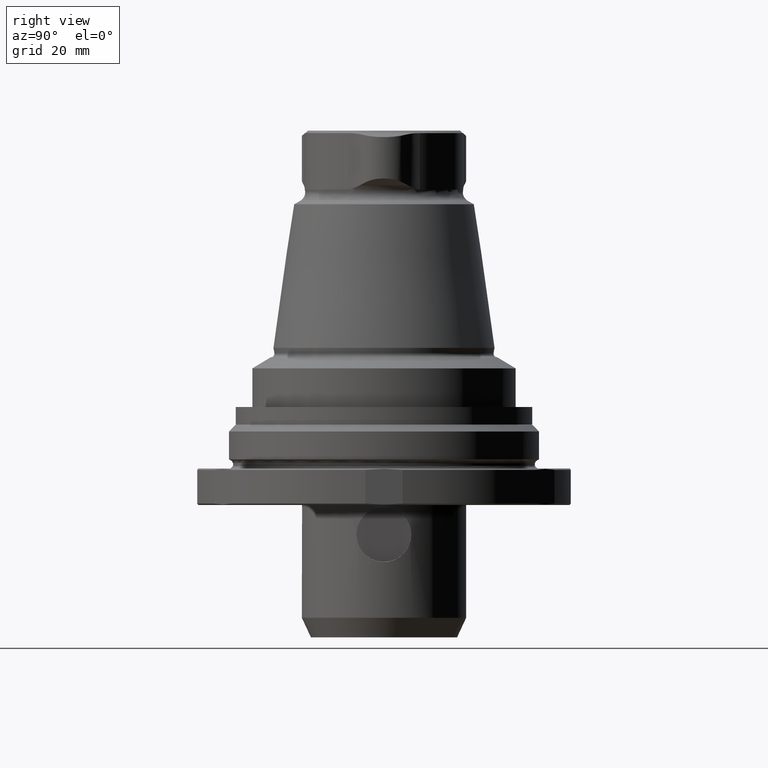
[diagram: clean part render]
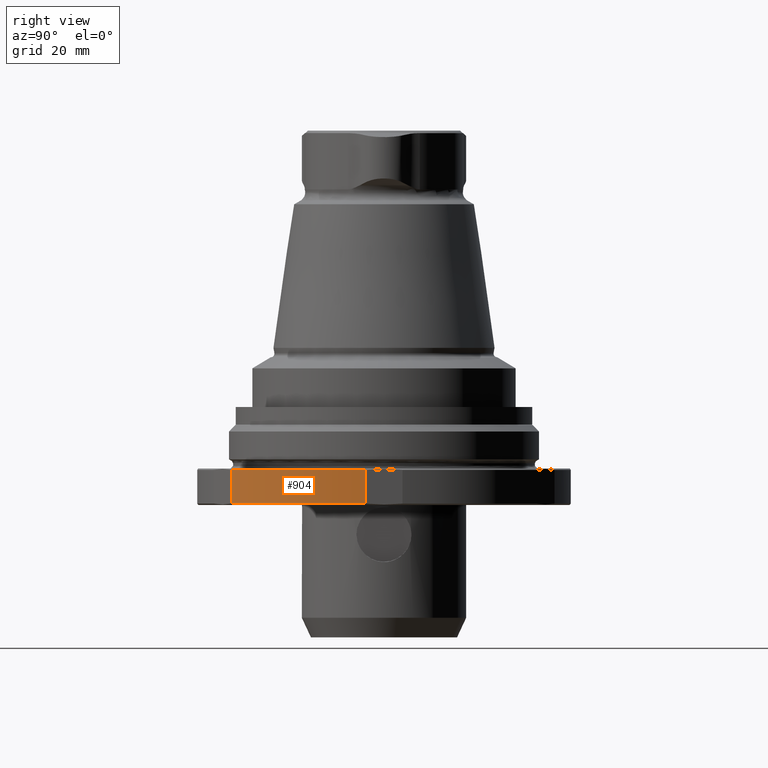
[diagram: same view with one face highlighted and labeled with its STEP entity id]
A machine part, right view. The second image highlights one B-rep face of the part: STEP entity #904.
In plain terms, the highlighted cylindrical surface (partial cylindrical patch) has radius 41 mm, axis along (-0, -0, -1).
Its self-contained STEP definition (entity closure, byte-faithful):
#22=LINE('',#1503,#50);
#23=LINE('',#1507,#51);
#50=VECTOR('',#1172,1000.);
#51=VECTOR('',#1177,1000.);
#130=CIRCLE('',#997,41.);
#138=CIRCLE('',#1008,41.);
#222=ORIENTED_EDGE('',*,*,#451,.F.);
#223=ORIENTED_EDGE('',*,*,#452,.T.);
#224=ORIENTED_EDGE('',*,*,#433,.T.);
#225=ORIENTED_EDGE('',*,*,#450,.T.);
#433=EDGE_CURVE('',#557,#556,#130,.T.);
#450=EDGE_CURVE('',#556,#571,#22,.T.);
#451=EDGE_CURVE('',#572,#571,#138,.T.);
#452=EDGE_CURVE('',#572,#557,#23,.F.);
#556=VERTEX_POINT('',#1447);
#557=VERTEX_POINT('',#1449);
#571=VERTEX_POINT('',#1502);
#572=VERTEX_POINT('',#1506);
#704=EDGE_LOOP('',(#222,#223,#224,#225));
#799=FACE_BOUND('',#704,.T.);
#863=CYLINDRICAL_SURFACE('',#1007,41.);
#904=ADVANCED_FACE('',(#799),#863,.T.);
#997=AXIS2_PLACEMENT_3D('',#1448,#1150,#1151);
#1007=AXIS2_PLACEMENT_3D('',#1504,#1173,#1174);
#1008=AXIS2_PLACEMENT_3D('',#1505,#1175,#1176);
#1150=DIRECTION('',(-5.20001084984554E-33,-4.76419527885826E-18,-1.));
#1151=DIRECTION('',(-1.,0.,0.));
#1172=DIRECTION('',(-5.20001084984554E-33,-4.76419527885825E-18,-1.));
#1173=DIRECTION('',(-5.20001084984554E-33,-4.76419527885826E-18,-1.));
#1174=DIRECTION('',(-1.,0.,0.));
#1175=DIRECTION('',(-5.20001084984554E-33,-4.76419527885826E-18,-1.));
#1176=DIRECTION('',(-1.,0.,0.));
#1177=DIRECTION('',(-5.20001084984554E-33,-4.76419527885826E-18,-1.));
#1447=CARTESIAN_POINT('',(23.9028559776274,-33.3114616327894,-1.3));
#1448=CARTESIAN_POINT('',(7.88665112559661E-15,-4.71655332606972E-17,-1.3));
#1449=CARTESIAN_POINT('',(40.8,-4.04474968323131,-1.3));
#1502=CARTESIAN_POINT('',(23.9028559776274,-33.3114616327895,-8.70000000000003));
#1503=CARTESIAN_POINT('',(23.9028559776274,-33.3114616327894,-1.00000000000001));
#1504=CARTESIAN_POINT('',(7.88665112559661E-15,-4.57362746770397E-17,-1.00000000000001));
#1505=CARTESIAN_POINT('',(7.88665112559661E-15,-8.24205783242483E-17,-8.70000000000001));
#1506=CARTESIAN_POINT('',(40.8,-4.04474968323126,-8.70000000000001));
#1507=CARTESIAN_POINT('',(40.8,-4.04474968323131,-1.00000000000001));